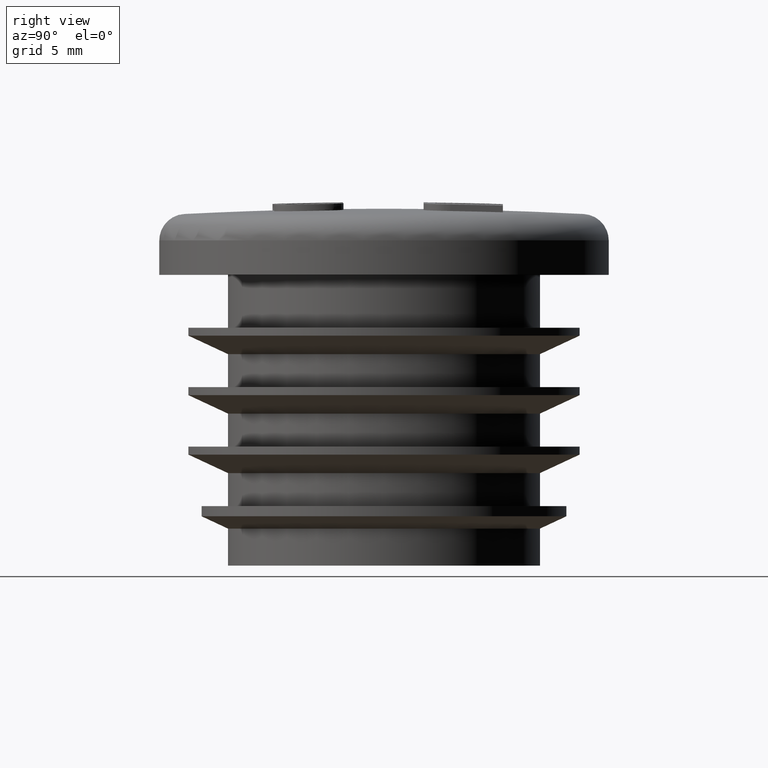
[diagram: clean part render]
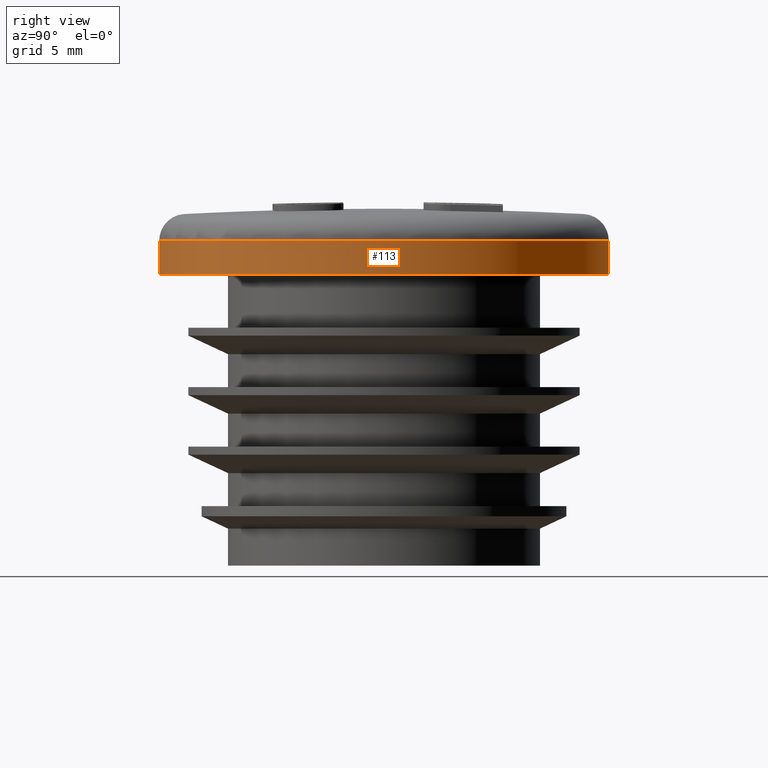
[diagram: same view with one face highlighted and labeled with its STEP entity id]
A machine part, right view. The second image highlights one B-rep face of the part: STEP entity #113.
In plain terms, the highlighted cylindrical surface (bore or boss wall) has radius 17 mm, axis along (0, 0, 1).
Its self-contained STEP definition (entity closure, byte-faithful):
#113 = ADVANCED_FACE( '', ( #252, #253 ), #254, .T. );
#252 = FACE_OUTER_BOUND( '', #678, .T. );
#253 = FACE_OUTER_BOUND( '', #679, .T. );
#254 = CYLINDRICAL_SURFACE( '', #680, 17.0000000000000 );
#678 = EDGE_LOOP( '', ( #1166 ) );
#679 = EDGE_LOOP( '', ( #1167 ) );
#680 = AXIS2_PLACEMENT_3D( '', #1168, #1169, #1170 );
#1166 = ORIENTED_EDGE( '', *, *, #1666, .F. );
#1167 = ORIENTED_EDGE( '', *, *, #1661, .T. );
#1168 = CARTESIAN_POINT( '', ( 0.000000000000000, 0.000000000000000, 22.0000000000000 ) );
#1169 = DIRECTION( '', ( 0.000000000000000, 6.12303176911189E-017, 1.00000000000000 ) );
#1170 = DIRECTION( '', ( 0.000000000000000, 1.00000000000000, -6.12303176911189E-017 ) );
#1661 = EDGE_CURVE( '', #1920, #1920, #1921, .T. );
#1666 = EDGE_CURVE( '', #1930, #1930, #1931, .T. );
#1920 = VERTEX_POINT( '', #2821 );
#1921 = CIRCLE( '', #2822, 17.0000000000000 );
#1930 = VERTEX_POINT( '', #2891 );
#1931 = CIRCLE( '', #2892, 17.0000000000000 );
#2821 = CARTESIAN_POINT( '', ( 0.000000000000000, 17.0000000000000, 24.6063071496884 ) );
#2822 = AXIS2_PLACEMENT_3D( '', #3365, #3366, #3367 );
#2891 = CARTESIAN_POINT( '', ( 0.000000000000000, 17.0000000000000, 22.0000000000000 ) );
#2892 = AXIS2_PLACEMENT_3D( '', #3368, #3369, #3370 );
#3365 = CARTESIAN_POINT( '', ( 0.000000000000000, 1.59585014776055E-016, 24.6063071496884 ) );
#3366 = DIRECTION( '', ( 0.000000000000000, -6.12303176911189E-017, -1.00000000000000 ) );
#3367 = DIRECTION( '', ( 0.000000000000000, 1.00000000000000, -6.12303176911189E-017 ) );
#3368 = CARTESIAN_POINT( '', ( 0.000000000000000, 3.88107450296504E-063, 22.0000000000000 ) );
#3369 = DIRECTION( '', ( 0.000000000000000, -6.12303176911189E-017, -1.00000000000000 ) );
#3370 = DIRECTION( '', ( 0.000000000000000, 1.00000000000000, -6.12303176911189E-017 ) );